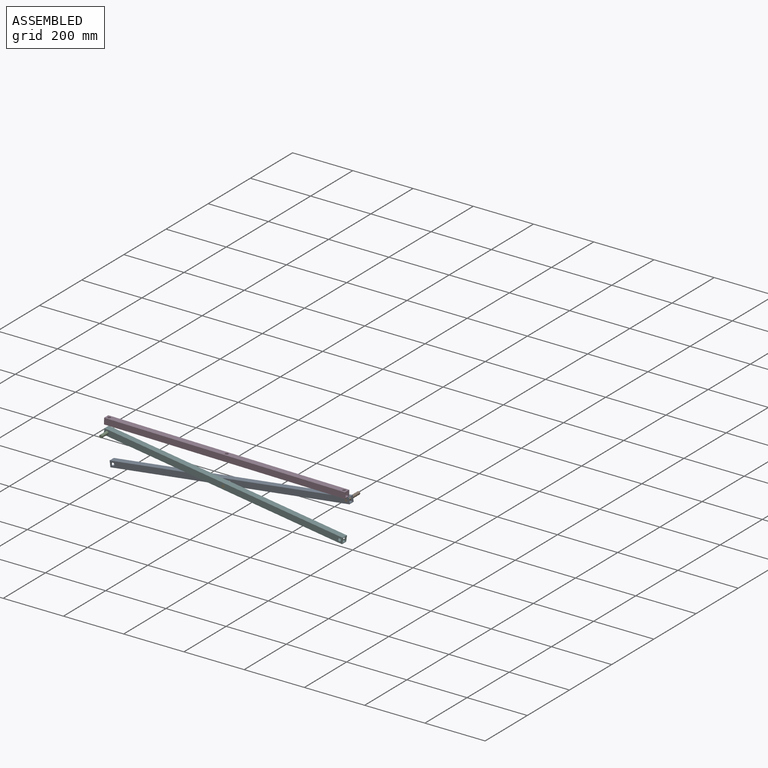
[diagram: assembled view]
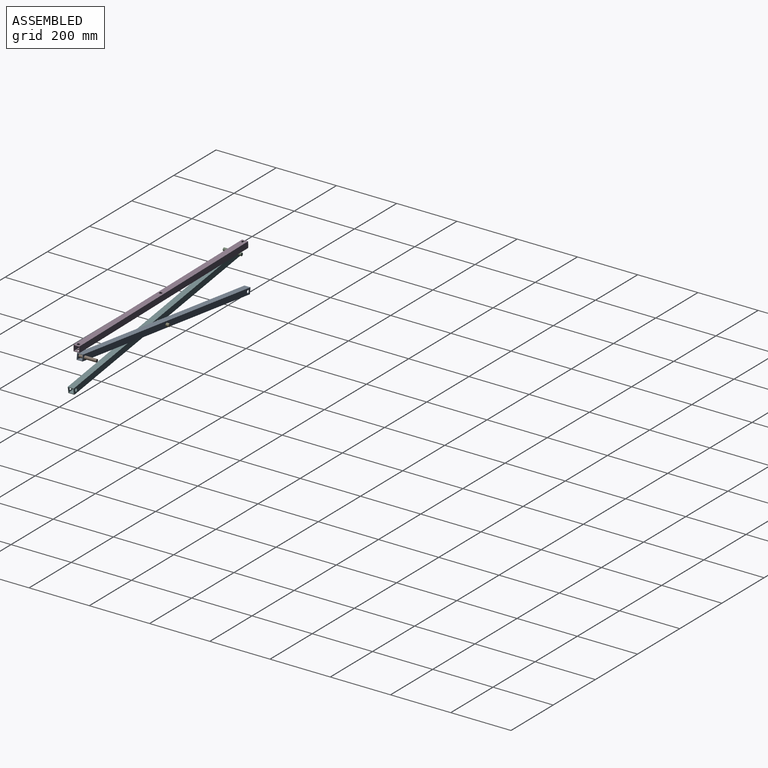
[diagram: assembled view, second angle]
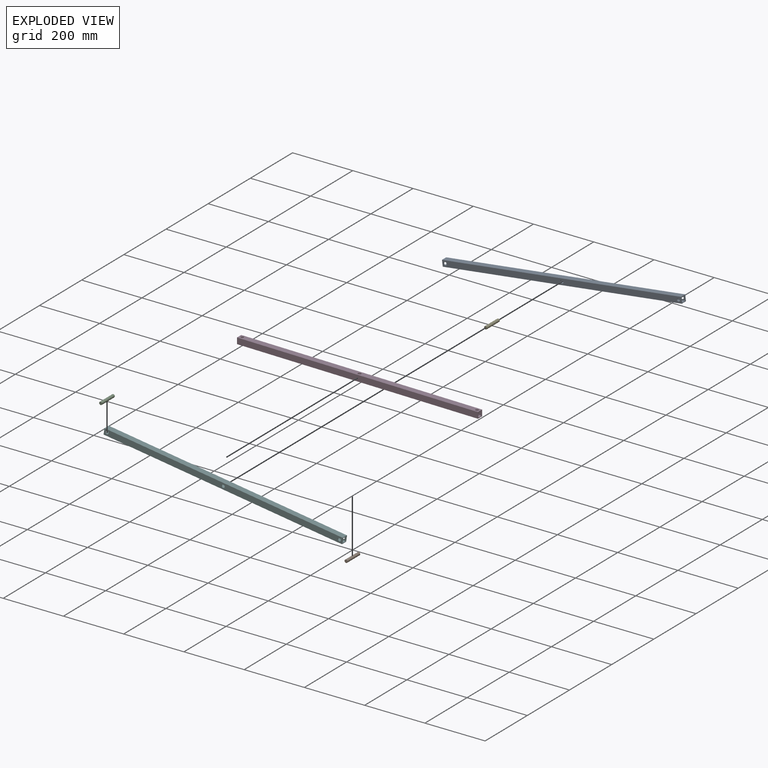
[diagram: exploded view]
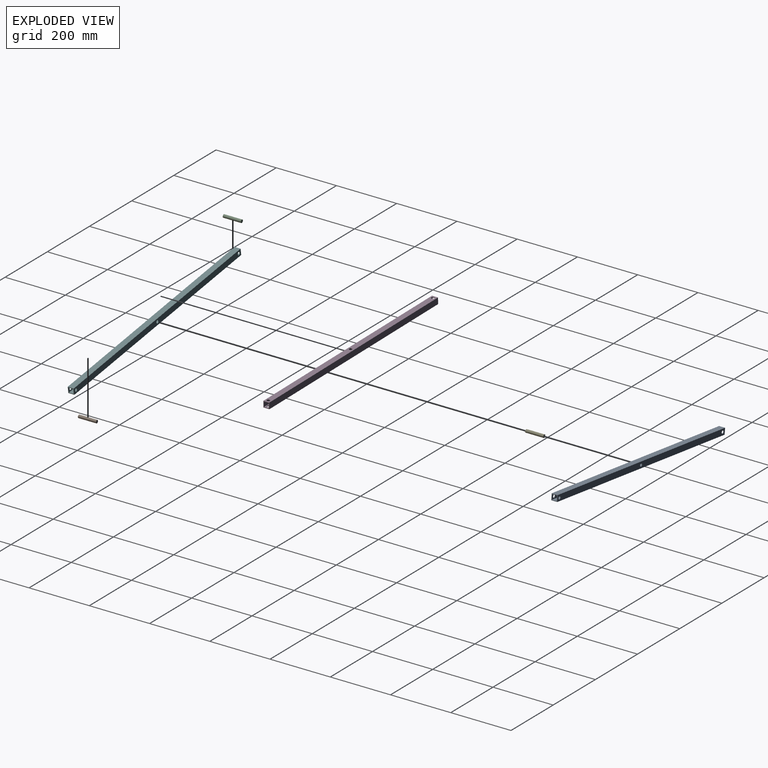
[diagram: exploded view, second angle]
ASSEMBLY  parts=6 mates=5
PART A: 16 faces, bbox 20x800x20 mm
  f0: plane 800x20mm, normal (-1,0,0), area 15764.4mm2, adj f1,f7,f8,f9,f13,f14,f15
  f1: plane 800x20mm, normal (0,0,-1), area 16000mm2, adj f0,f2,f8,f9
  f2: plane 800x20mm, normal (1,0,0), area 15764.4mm2, adj f1,f7,f8,f9,f10,f11,f12
  f3: plane 800x16mm, normal (0,0,1), area 12800mm2, adj f4,f6,f8,f9
  f4: plane 800x16mm, normal (1,0,0), area 12564.4mm2, adj f3,f5,f8,f9,f13,f14,f15
  f5: plane 800x16mm, normal (0,0,-1), area 12800mm2, adj f4,f6,f8,f9
  f6: plane 800x16mm, normal (-1,0,0), area 12564.4mm2, adj f3,f5,f8,f9,f10,f11,f12
  f7: plane 800x20mm, normal (0,0,1), area 16000mm2, adj f0,f2,f8,f9
  f8: plane 20x20mm, normal (0,-1,0), area 144mm2, adj f0,f1,f2,f3,f4,f5,f6,f7
  f9: plane 20x20mm, normal (0,1,0), area 144mm2, adj f0,f1,f2,f3,f4,f5,f6,f7
  f10: cylinder r=5mm len=10mm, axis (1,0,0), area 62.8mm2, adj f2,f6
  f11: cylinder r=5mm len=10mm, axis (1,0,0), area 62.8mm2, adj f2,f6
  f12: cylinder r=5mm len=10mm, axis (1,0,0), area 62.8mm2, adj f2,f6
  f13: cylinder r=5mm len=10mm, axis (1,0,0), area 62.8mm2, adj f0,f4
  f14: cylinder r=5mm len=10mm, axis (1,0,0), area 62.8mm2, adj f0,f4
  f15: cylinder r=5mm len=10mm, axis (1,0,0), area 62.8mm2, adj f0,f4
PART B: 3 faces, bbox 10x60x10 mm
  f0: cylinder r=5mm len=60mm, axis (0,1,0), area 1885mm2, adj f1,f2
  f1: plane 10x10mm, normal (0,-1,0), area 78.5mm2, adj f0
  f2: plane 10x10mm, normal (0,1,0), area 78.5mm2, adj f0
PART C: same geometry as B
PART D: same geometry as A
PART E: same geometry as B
PART F: same geometry as A
PLACE A rot(axis=(-0.06,-0.06,1),90.2deg) t=(-333.78,-300.64,-443.63)mm
PLACE B rot(axis=(0,-1,0),162.1deg) t=(424.58,-240.64,-297.66)mm
PLACE C rot(axis=(0,-1,0),27.3deg) t=(-281.38,-300.64,-334.32)mm fixed
PLACE D rot(axis=(0.57,0.58,-0.58),120.4deg) t=(454.86,-294.4,-302.67)mm fixed
PLACE E rot(axis=(0,-1,0),0.2deg) t=(95.88,-270.64,-410.09)mm
PLACE F rot(axis=(0.07,0.07,0.99),90.3deg) t=(-335.38,-330.64,-334.29)mm
MATE revolute F.f10 <-> C.f0  axis (0,-1,0) through (-324.02,-330.64,-325.87)mm
MATE revolute A.f11 <-> E.f0  axis (0,-1,0) through (61.75,-300.64,-383.17)mm
MATE revolute A.f12 <-> B.f0  axis (0,-1,0) through (448.62,-300.64,-333.89)mm
MATE parallel D.f1 <-> F.f11  axis (0,1,0) through (54.77,-294.4,-307.69)mm
MATE revolute E.f0 <-> F.f11  axis (0,1,0) through (61.75,-330.64,-383.17)mm
